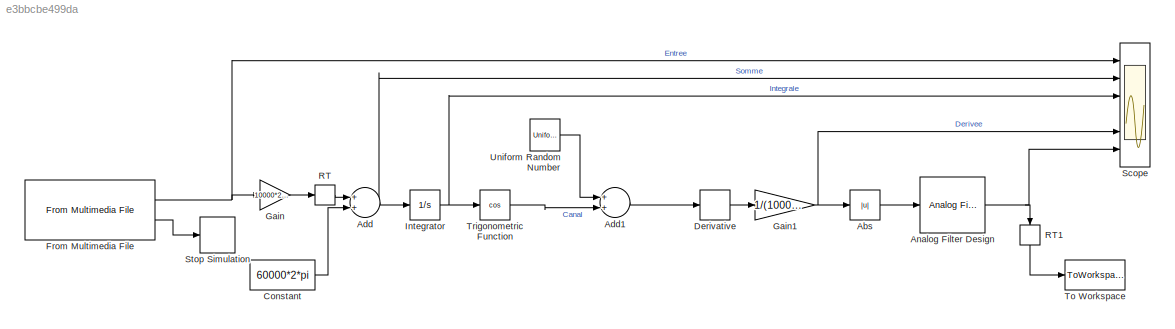
MODEL slx_e3bbcbe499da
KIND model
CONFIG AbsTol = auto
CONFIG FixedStep = 1/2000000
CONFIG MaxStep = auto
CONFIG MinStep = auto
CONFIG RelTol = 1e-3
CONFIG SampleTimeConstraint = Unconstrained
CONFIG Solver = ode3
CONFIG SolverMode = Auto
CONFIG SolverName = ode3
CONFIG StartTime = 0.0
CONFIG StopTime = 5
BLOCK [Abs] Abs
  SaturateOnIntegerOverflow = off
BLOCK [Sum] Add
  InputSameDT = off
  OutDataTypeStr = Inherit: Inherit via internal rule
  Ports = [2, 1]
  SaturateOnIntegerOverflow = off
BLOCK [Sum] Add1
  InputSameDT = off
  OutDataTypeStr = Inherit: Inherit via internal rule
  Ports = [2, 1]
  SaturateOnIntegerOverflow = off
BLOCK [Reference] Analog Filter Design  REF=dsparch4/Analog
Filter Design
  Ports = [1, 1]
  SourceBlock = dsparch4/Analog\nFilter Design
  SourceType = Analog Filter Design
BLOCK [Constant] Constant
  SampleTime = 1/2000000
  Value = 60000*2*pi
BLOCK [Derivative] Derivative
BLOCK [Reference] From Multimedia File  REF=dspvision/From Multimedia File
  Ports = [0, 2]
  SourceBlock = dspvision/From Multimedia File
  SourceType = From Multimedia File
BLOCK [Gain] Gain
  Gain = 10000*2*pi
  OutDataTypeStr = Inherit: Inherit via internal rule
  ParamDataTypeStr = Inherit: Inherit via internal rule
  SaturateOnIntegerOverflow = off
BLOCK [Gain] Gain1
  Gain = 1/(10000*2*pi)
  OutDataTypeStr = Inherit: Inherit via internal rule
  ParamDataTypeStr = Inherit: Inherit via internal rule
  SaturateOnIntegerOverflow = off
BLOCK [Integrator] Integrator
  Ports = [1, 1]
BLOCK [RateTransition] RT
  OutPortSampleTime = 5e-07
BLOCK [RateTransition] RT1
  OutPortSampleTime = 1/40000
BLOCK [Scope] Scope
  NumInputPorts = 6
  Ports = [6]
  ScopeSpecificationString = Simulink.scopes.TimeScopeBlockCfg('CurrentConfiguration', extmgr.ConfigurationSet(extmgr.Configuration('Core','General UI',true),extmgr.Configuration('Core','Source UI',true),extmgr.Configuration('Sources','WiredSimulink',true),extmgr.Configuration('Visuals','Time Domain',true,'SerializedDisplays',{struct('MinYLimReal','-1.10765','MaxYLimReal','1.23415','YLabelReal','','MinYLimMag','0.00000','MaxY...<+4908ch>
BLOCK [Stop] Stop Simulation
BLOCK [ToWorkspace] To Workspace
  FixptAsFi = on
  MaxDataPoints = inf
  Ports = [1]
  SampleTime = -1
  Save2DSignal = 2-D array (concatenate along first dimension)
  VariableName = simout
BLOCK [Trigonometry] Trigonometric Function
  Operator = cos
  Ports = [1, 1]
BLOCK [UniformRandomNumber] Uniform Random Number
  Maximum = 1/10000
  Minimum = -1/10000
  SampleTime = 1/2000000
LINE Abs:1 -> Analog Filter Design:1
LINE Add1:1 -> Derivative:1
NET Add:1 -> Integrator:1, Scope:2
NET Analog Filter Design:1 -> RT1:1, Scope:6
LINE Constant:1 -> Add:2
LINE Derivative:1 -> Gain1:1
NET From Multimedia File:1 -> Gain:1, Scope:1
LINE From Multimedia File:2 -> Stop Simulation:1
NET Gain1:1 -> Abs:1, Scope:5
LINE Gain:1 -> RT:1
NET Integrator:1 -> Scope:3, Trigonometric Function:1
LINE RT1:1 -> To Workspace:1
LINE RT:1 -> Add:1
LINE Trigonometric Function:1 -> Add1:2
LINE Uniform Random Number:1 -> Add1:1
note: NET lines group one-source signal fan-out (src -> all destinations, sorted); 1:1 wires keep LINE
